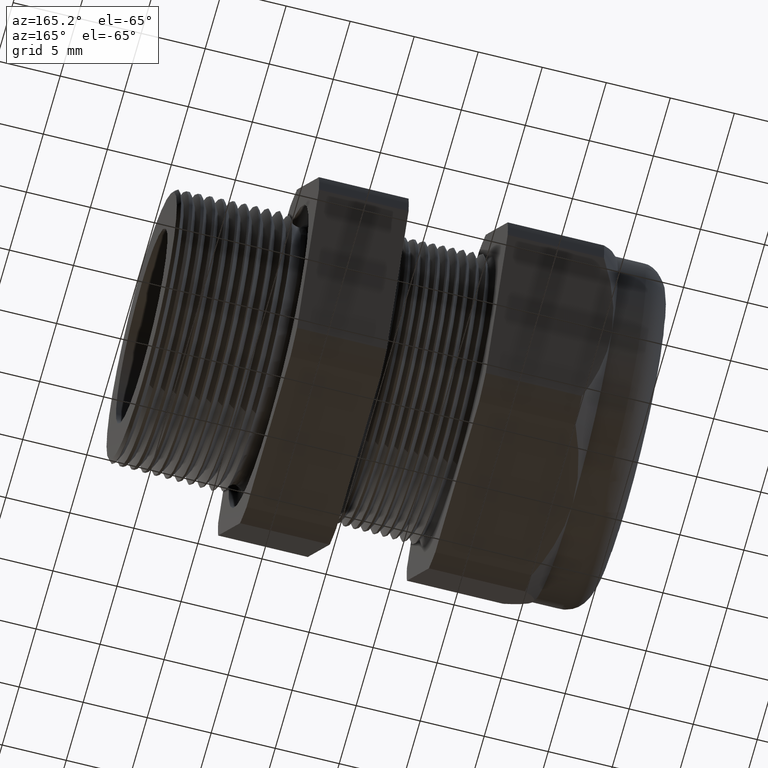
[diagram: clean part render]
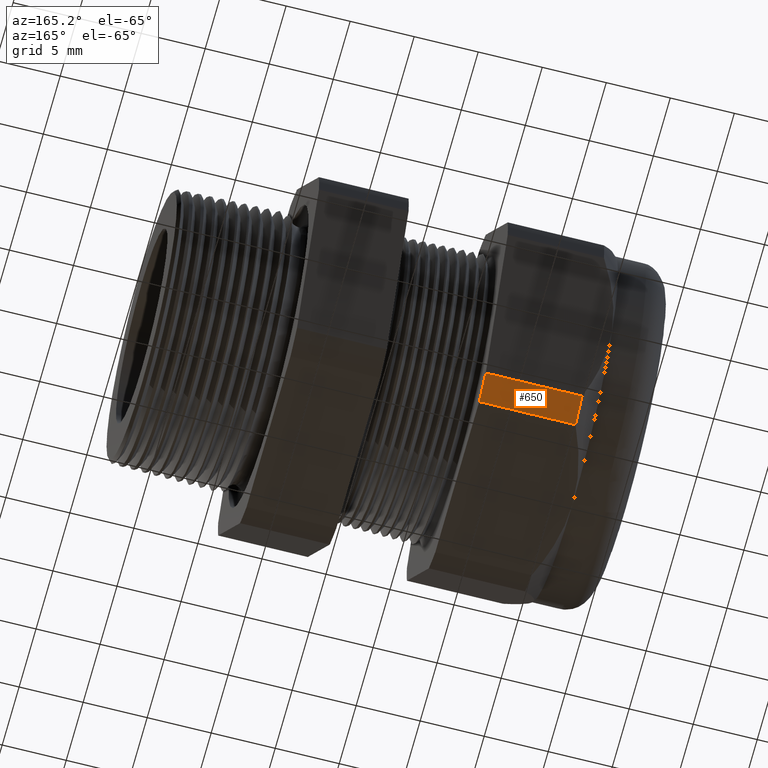
[diagram: same view with one face highlighted and labeled with its STEP entity id]
A machine part, auxiliary view. The second image highlights one B-rep face of the part: STEP entity #650.
In plain terms, the highlighted cylindrical surface (partial cylindrical patch) has radius 14.9428 mm, axis along (-1, 0, 0).
Its self-contained STEP definition (entity closure, byte-faithful):
#631 = ORIENTED_EDGE ( 'NONE', *, *, #666, .F. ) ;
#632 = ORIENTED_EDGE ( 'NONE', *, *, #633, .F. ) ;
#633 = EDGE_CURVE ( 'NONE', #654, #667, #2838, .T. ) ;
#650 = ADVANCED_FACE ( 'NONE', ( #2911 ), #2910, .T. ) ;
#651 = EDGE_LOOP ( 'NONE', ( #652, #656, #631, #632 ) ) ;
#652 = ORIENTED_EDGE ( 'NONE', *, *, #653, .T. ) ;
#653 = EDGE_CURVE ( 'NONE', #654, #655, #2909, .T. ) ;
#654 = VERTEX_POINT ( 'NONE', #2901 ) ;
#655 = VERTEX_POINT ( 'NONE', #2900 ) ;
#656 = ORIENTED_EDGE ( 'NONE', *, *, #657, .T. ) ;
#657 = EDGE_CURVE ( 'NONE', #655, #668, #2899, .T. ) ;
#666 = EDGE_CURVE ( 'NONE', #667, #668, #2942, .T. ) ;
#667 = VERTEX_POINT ( 'NONE', #2938 ) ;
#668 = VERTEX_POINT ( 'NONE', #2937 ) ;
#2834 = DIRECTION ( 'NONE',  ( 0.0000000000000000000, 0.0000000000000000000, -1.000000000000000000 ) ) ;
#2835 = DIRECTION ( 'NONE',  ( 1.000000000000000000, 0.0000000000000000000, 0.0000000000000000000 ) ) ;
#2836 = CARTESIAN_POINT ( 'NONE',  ( -0.8903149606299216600, 0.0000000000000000000, 0.0000000000000000000 ) ) ;
#2837 = AXIS2_PLACEMENT_3D ( 'NONE', #2836, #2835, #2834 ) ;
#2838 = CIRCLE ( 'NONE', #2837, 0.5882999999999999300 ) ;
#2895 = DIRECTION ( 'NONE',  ( 0.0000000000000000000, 0.0000000000000000000, -1.000000000000000000 ) ) ;
#2896 = DIRECTION ( 'NONE',  ( 1.000000000000000000, 0.0000000000000000000, 0.0000000000000000000 ) ) ;
#2897 = CARTESIAN_POINT ( 'NONE',  ( -1.186345669291339200, 0.0000000000000000000, 0.0000000000000000000 ) ) ;
#2898 = AXIS2_PLACEMENT_3D ( 'NONE', #2897, #2896, #2895 ) ;
#2899 = CIRCLE ( 'NONE', #2898, 0.5882999999999999300 ) ;
#2900 = CARTESIAN_POINT ( 'NONE',  ( -1.186345669291339200, 0.2553368167734532700, -0.5299999999999999200 ) ) ;
#2901 = CARTESIAN_POINT ( 'NONE',  ( -0.8903149606299216600, 0.2553368167734532700, -0.5299999999999999200 ) ) ;
#2902 = DIRECTION ( 'NONE',  ( -1.000000000000000000, 0.0000000000000000000, 0.0000000000000000000 ) ) ;
#2903 = VECTOR ( 'NONE', #2902, 39.37007874015748100 ) ;
#2904 = CARTESIAN_POINT ( 'NONE',  ( 0.07999999999999996000, 0.2553368167734532700, -0.5299999999999999200 ) ) ;
#2905 = DIRECTION ( 'NONE',  ( 0.0000000000000000000, 0.0000000000000000000, 1.000000000000000000 ) ) ;
#2906 = DIRECTION ( 'NONE',  ( -1.000000000000000000, 0.0000000000000000000, 0.0000000000000000000 ) ) ;
#2907 = CARTESIAN_POINT ( 'NONE',  ( 0.07999999999999996000, 0.0000000000000000000, 0.0000000000000000000 ) ) ;
#2908 = AXIS2_PLACEMENT_3D ( 'NONE', #2907, #2906, #2905 ) ;
#2909 = LINE ( 'NONE', #2904, #2903 ) ;
#2910 = CYLINDRICAL_SURFACE ( 'NONE', #2908, 0.5882999999999999300 ) ;
#2911 = FACE_OUTER_BOUND ( 'NONE', #651, .T. ) ;
#2937 = CARTESIAN_POINT ( 'NONE',  ( -1.186345669291339200, 0.3313250556190259800, -0.4861281698472629300 ) ) ;
#2938 = CARTESIAN_POINT ( 'NONE',  ( -0.8903149606299216600, 0.3313250556190259800, -0.4861281698472629300 ) ) ;
#2939 = DIRECTION ( 'NONE',  ( -1.000000000000000000, 0.0000000000000000000, 0.0000000000000000000 ) ) ;
#2940 = VECTOR ( 'NONE', #2939, 39.37007874015748100 ) ;
#2941 = CARTESIAN_POINT ( 'NONE',  ( 0.07999999999999996000, 0.3313250556190259800, -0.4861281698472629300 ) ) ;
#2942 = LINE ( 'NONE', #2941, #2940 ) ;